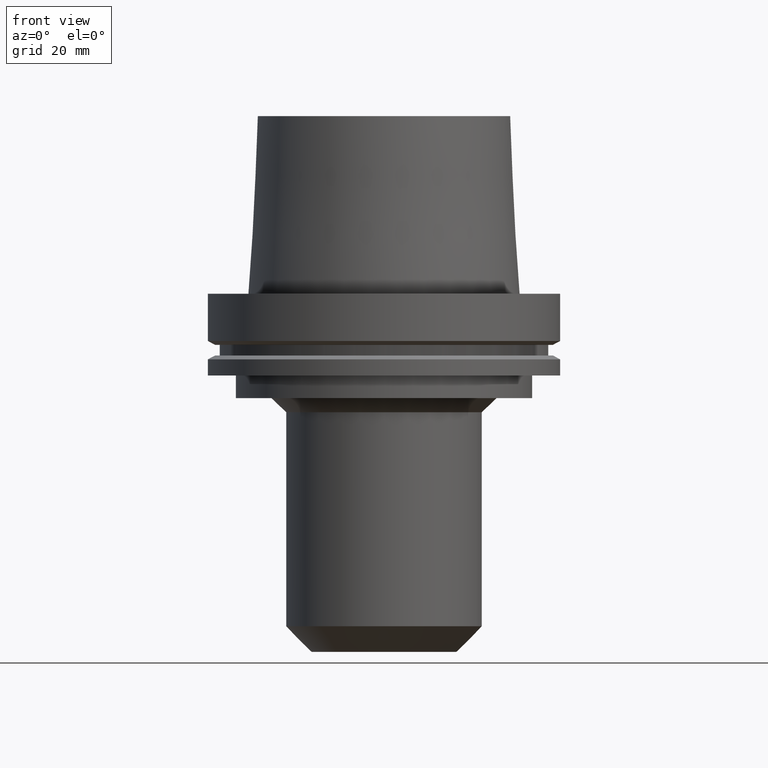
[diagram: clean part render]
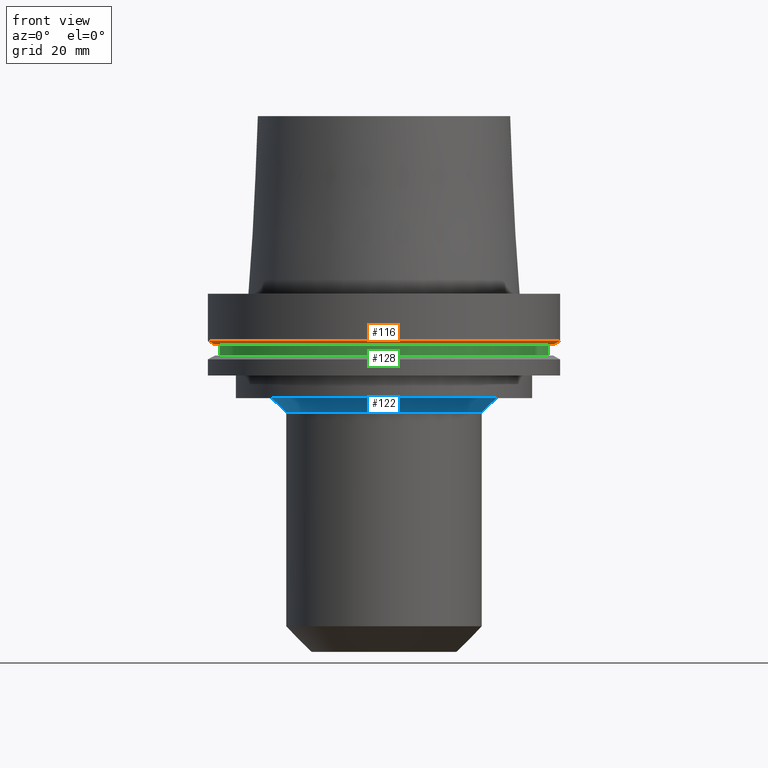
[diagram: same view with three faces highlighted in distinct colors, each labeled with its STEP entity id]
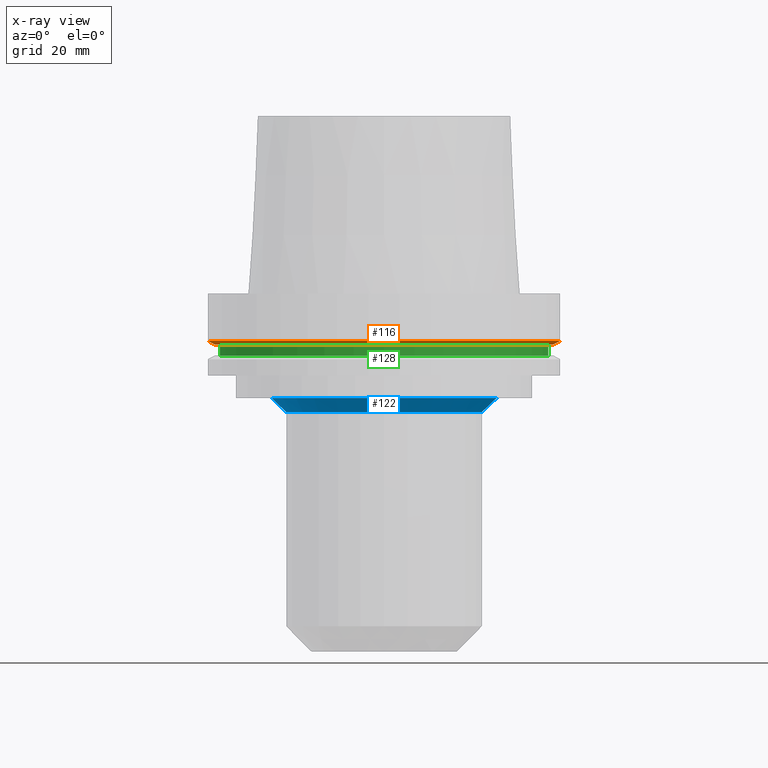
[diagram: x-ray of the same camera — body ghosted, the three highlighted faces saturated]
A machine part, front view with three faces highlighted in distinct colors.
The next image is the same camera in x-ray (body ghosted, the three faces saturated) — at least one of them is partly hidden behind the body in this view.
Their STEP definitions:

[orange] entity #116 — the highlighted conical surface has half-angle 60 deg.
#92=EDGE_CURVE('Unnamed[1]',#211,#211,#212,.T.);
#116=ADVANCED_FACE('Unnamed[1]',(#248,#249),#250,.T.);
#142=EDGE_CURVE('Unnamed[1]',#291,#291,#292,.T.);
#211=VERTEX_POINT('',#365);
#212=CIRCLE('',#366,62.5);
#248=FACE_BOUND('',#412,.T.);
#249=FACE_BOUND('',#413,.T.);
#250=CONICAL_SURFACE('',#414,61.3112976320956,1.04719755119668);
#291=VERTEX_POINT('',#464);
#292=CIRCLE('',#465,60.1225952641912);
#365=CARTESIAN_POINT('',(1.02578894188644E-015,62.5,-16.7524047358084));
#366=AXIS2_PLACEMENT_3D('',#521,#522,#523);
#412=EDGE_LOOP('',(#561));
#413=EDGE_LOOP('',(#562));
#414=AXIS2_PLACEMENT_3D('',#563,#564,#565);
#464=CARTESIAN_POINT('',(1.10983616172729E-015,60.1225952641912,-18.1250000000001));
#465=AXIS2_PLACEMENT_3D('',#613,#614,#615);
#521=CARTESIAN_POINT('',(1.02578894188644E-015,2.05157788377287E-015,-16.7524047358084));
#522=DIRECTION('',(6.12323399573677E-017,1.22464679914735E-016,-1.0));
#523=DIRECTION('',(-1.23259516440783E-032,1.0,1.22464679914735E-016));
#561=ORIENTED_EDGE('',*,*,#142,.F.);
#562=ORIENTED_EDGE('',*,*,#92,.T.);
#563=CARTESIAN_POINT('',(1.06781255180687E-015,2.13562510361373E-015,-17.4387023679043));
#564=DIRECTION('',(-6.12323399573677E-017,-1.22464679914735E-016,1.0));
#565=DIRECTION('',(-1.23259516440783E-032,1.0,1.22464679914735E-016));
#613=CARTESIAN_POINT('',(1.1098361617273E-015,2.21967232345459E-015,-18.1250000000001));
#614=DIRECTION('',(6.12323399573677E-017,1.22464679914735E-016,-1.0));
#615=DIRECTION('',(-1.23259516440783E-032,1.0,1.22464679914735E-016));

[blue] entity #122 — the highlighted conical surface has half-angle 45 deg.
#58=EDGE_CURVE('Unnamed[1]',#160,#160,#161,.T.);
#69=EDGE_CURVE('Unnamed[1]',#175,#175,#176,.T.);
#122=ADVANCED_FACE('Unnamed[1]',(#258,#259),#260,.T.);
#160=VERTEX_POINT('',#301);
#161=CIRCLE('',#302,34.9249999999999);
#175=VERTEX_POINT('',#319);
#176=CIRCLE('',#320,39.9249999999998);
#258=FACE_BOUND('',#424,.T.);
#259=FACE_BOUND('',#425,.T.);
#260=CONICAL_SURFACE('',#426,37.4249999999998,0.785398163397448);
#301=CARTESIAN_POINT('',(2.57175827820967E-015,34.9249999999999,-42.0000000000037));
#302=AXIS2_PLACEMENT_3D('',#467,#468,#469);
#319=CARTESIAN_POINT('',(2.26559657842284E-015,39.9249999999998,-37.0000000000038));
#320=AXIS2_PLACEMENT_3D('',#482,#483,#484);
#424=EDGE_LOOP('',(#573));
#425=EDGE_LOOP('',(#574));
#426=AXIS2_PLACEMENT_3D('',#575,#576,#577);
#467=CARTESIAN_POINT('',(2.57175827820967E-015,5.14351655641934E-015,-42.0000000000037));
#468=DIRECTION('',(6.12323399573677E-017,1.22464679914735E-016,-1.0));
#469=DIRECTION('',(-1.23259516440783E-032,1.0,1.22464679914735E-016));
#482=CARTESIAN_POINT('',(2.26559657842284E-015,4.53119315684567E-015,-37.0000000000038));
#483=DIRECTION('',(6.12323399573677E-017,1.22464679914735E-016,-1.0));
#484=DIRECTION('',(-1.23259516440783E-032,1.0,1.22464679914735E-016));
#573=ORIENTED_EDGE('',*,*,#58,.F.);
#574=ORIENTED_EDGE('',*,*,#69,.T.);
#575=CARTESIAN_POINT('',(2.41867742831625E-015,4.83735485663251E-015,-39.5000000000038));
#576=DIRECTION('',(-6.12323399573677E-017,-1.22464679914735E-016,1.0));
#577=DIRECTION('',(-1.23259516440783E-032,1.0,1.22464679914735E-016));

[green] entity #128 — the highlighted cylindrical surface (bore or boss wall) has radius 58.5 mm, axis along (0, 0, -1).
#88=EDGE_CURVE('Unnamed[1]',#205,#205,#206,.T.);
#107=EDGE_CURVE('Unnamed[1]',#235,#235,#236,.T.);
#128=ADVANCED_FACE('Unnamed[1]',(#268,#269),#270,.T.);
#205=VERTEX_POINT('',#357);
#206=CIRCLE('',#358,58.4999999999998);
#235=VERTEX_POINT('',#395);
#236=CIRCLE('',#396,58.5);
#268=FACE_BOUND('',#436,.T.);
#269=FACE_BOUND('',#437,.T.);
#270=CYLINDRICAL_SURFACE('',#438,58.4999999999999);
#357=CARTESIAN_POINT('',(1.33945743656732E-015,58.4999999999998,-21.8749999999984));
#358=AXIS2_PLACEMENT_3D('',#515,#516,#517);
#395=CARTESIAN_POINT('',(1.10983616172739E-015,58.5,-18.1250000000017));
#396=AXIS2_PLACEMENT_3D('',#548,#549,#550);
#436=EDGE_LOOP('',(#585));
#437=EDGE_LOOP('',(#586));
#438=AXIS2_PLACEMENT_3D('',#587,#588,#589);
#515=CARTESIAN_POINT('',(1.33945743656732E-015,2.67891487313464E-015,-21.8749999999984));
#516=DIRECTION('',(6.12323399573677E-017,1.22464679914735E-016,-1.0));
#517=DIRECTION('',(-1.23259516440783E-032,1.0,1.22464679914735E-016));
#548=CARTESIAN_POINT('',(1.10983616172739E-015,2.21967232345479E-015,-18.1250000000017));
#549=DIRECTION('',(6.12323399573677E-017,1.22464679914735E-016,-1.0));
#550=DIRECTION('',(-1.23259516440783E-032,1.0,1.22464679914735E-016));
#585=ORIENTED_EDGE('',*,*,#88,.F.);
#586=ORIENTED_EDGE('',*,*,#107,.T.);
#587=CARTESIAN_POINT('',(1.22464679914736E-015,2.44929359829471E-015,-20.0000000000001));
#588=DIRECTION('',(6.12323399573677E-017,1.22464679914735E-016,-1.0));
#589=DIRECTION('',(-1.23259516440783E-032,1.0,1.22464679914735E-016));